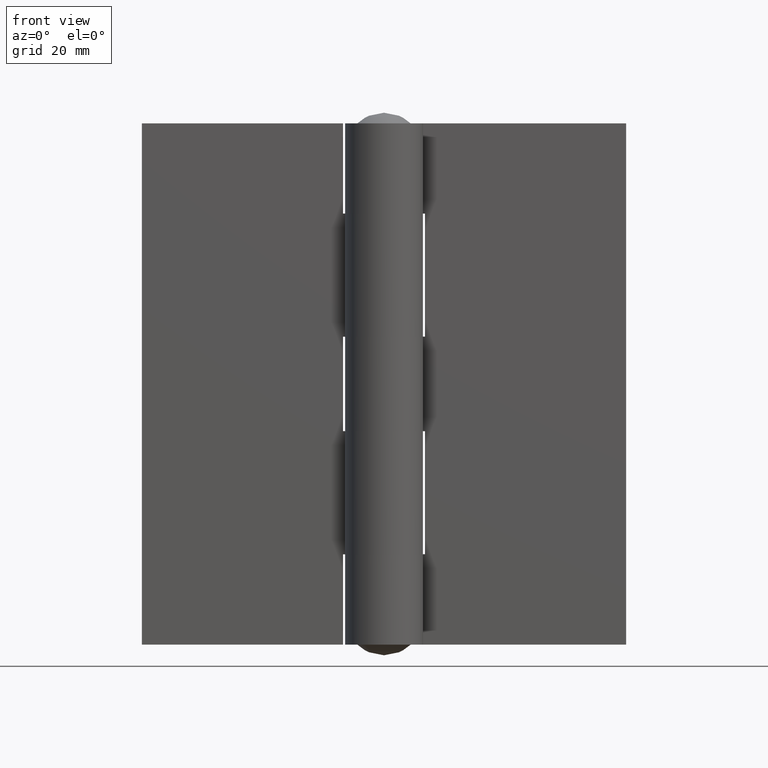
[diagram: clean part render]
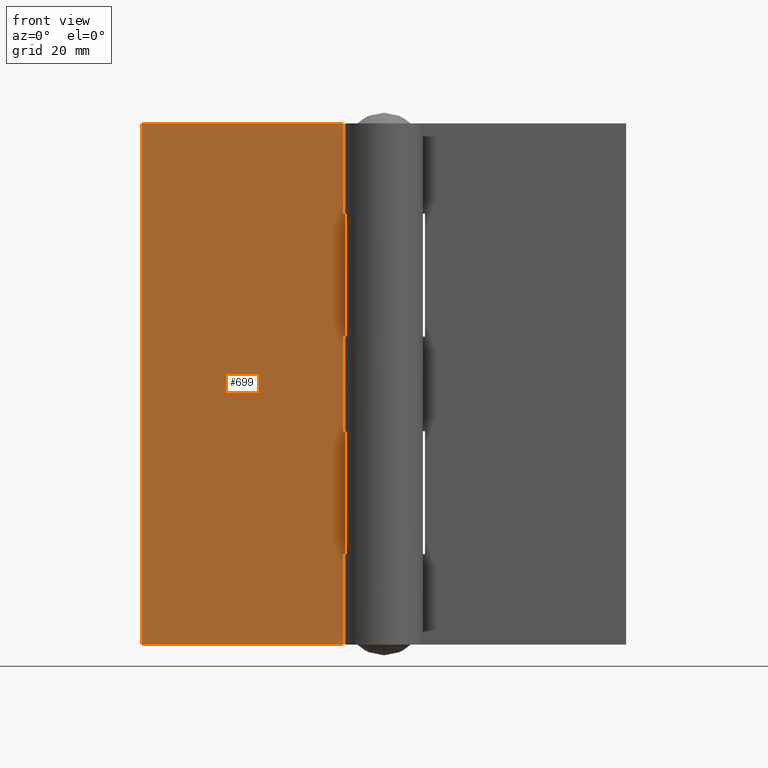
[diagram: same view with one face highlighted and labeled with its STEP entity id]
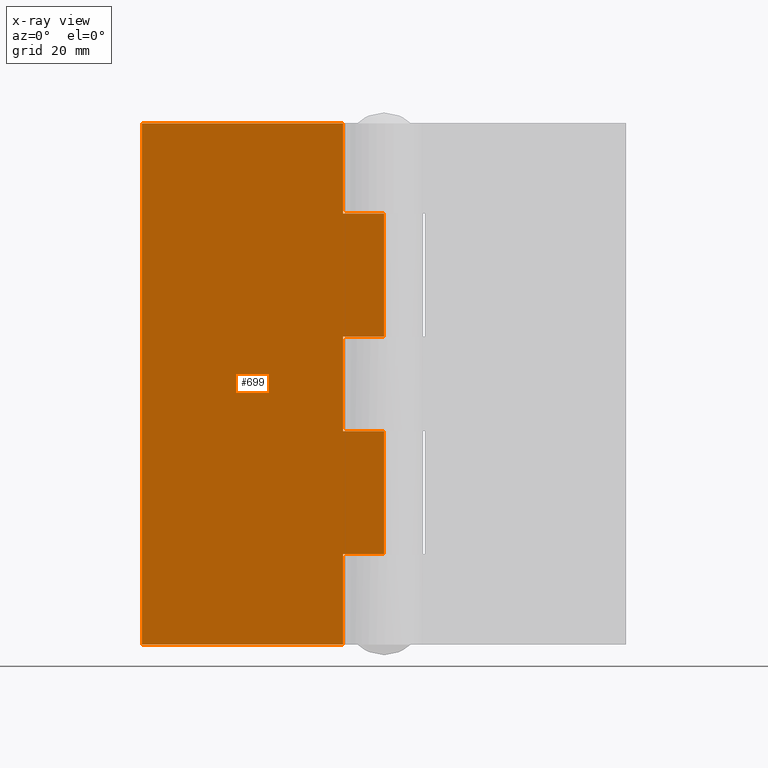
[diagram: x-ray of the same camera — body ghosted, the highlighted face saturated]
A machine part, front view. The second image highlights one B-rep face of the part: STEP entity #699.
The next image is the same camera in x-ray: the body ghosted, the highlighted face saturated — about 0% of this face is hidden behind the body in this view.
In plain terms, the highlighted face is a freeform B-spline surface patch.
Its self-contained STEP definition (entity closure, byte-faithful):
#49=CARTESIAN_POINT('',(-10.0,5.500000000000000,52.0));
#50=VERTEX_POINT('',#49);
#51=CARTESIAN_POINT('',(0.0,5.500000000000000,52.0));
#52=VERTEX_POINT('',#51);
#53=CARTESIAN_POINT('',(-10.0,5.500000000000000,52.0));
#54=CARTESIAN_POINT('',(0.0,5.500000000000000,52.0));
#55=QUASI_UNIFORM_CURVE('',1,(#53,#54),.UNSPECIFIED.,.F.,.U.);
#56=EDGE_CURVE('',#50,#52,#55,.T.);
#127=CARTESIAN_POINT('',(0.0,5.500000000000000,75.0));
#128=VERTEX_POINT('',#127);
#129=CARTESIAN_POINT('',(-10.0,5.500000000000000,75.0));
#130=VERTEX_POINT('',#129);
#131=CARTESIAN_POINT('',(0.0,5.500000000000000,75.0));
#132=CARTESIAN_POINT('',(-10.0,5.500000000000000,75.0));
#133=QUASI_UNIFORM_CURVE('',1,(#131,#132),.UNSPECIFIED.,.F.,.U.);
#134=EDGE_CURVE('',#128,#130,#133,.T.);
#205=CARTESIAN_POINT('',(-10.0,5.500000000000000,75.0));
#206=CARTESIAN_POINT('',(-10.0,5.500000000000000,52.0));
#207=QUASI_UNIFORM_CURVE('',1,(#205,#206),.UNSPECIFIED.,.F.,.U.);
#208=EDGE_CURVE('',#130,#50,#207,.T.);
#225=CARTESIAN_POINT('',(-10.0,5.500000000000000,22.0));
#226=VERTEX_POINT('',#225);
#227=CARTESIAN_POINT('',(-10.0,5.500000000000000,0.0));
#228=VERTEX_POINT('',#227);
#229=CARTESIAN_POINT('',(-10.0,5.500000000000000,22.0));
#230=CARTESIAN_POINT('',(-10.0,5.500000000000000,0.0));
#231=QUASI_UNIFORM_CURVE('',1,(#229,#230),.UNSPECIFIED.,.F.,.U.);
#232=EDGE_CURVE('',#226,#228,#231,.T.);
#261=CARTESIAN_POINT('',(0.0,5.500000000000000,22.0));
#262=VERTEX_POINT('',#261);
#263=CARTESIAN_POINT('',(0.0,5.500000000000000,22.0));
#264=CARTESIAN_POINT('',(-10.0,5.500000000000000,22.0));
#265=QUASI_UNIFORM_CURVE('',1,(#263,#264),.UNSPECIFIED.,.F.,.U.);
#266=EDGE_CURVE('',#262,#226,#265,.T.);
#331=CARTESIAN_POINT('',(-10.0,5.500000000000000,127.0));
#332=VERTEX_POINT('',#331);
#333=CARTESIAN_POINT('',(-10.0,5.500000000000000,105.0));
#334=VERTEX_POINT('',#333);
#335=CARTESIAN_POINT('',(-10.0,5.500000000000000,127.0));
#336=CARTESIAN_POINT('',(-10.0,5.500000000000000,105.0));
#337=QUASI_UNIFORM_CURVE('',1,(#335,#336),.UNSPECIFIED.,.F.,.U.);
#338=EDGE_CURVE('',#332,#334,#337,.T.);
#367=CARTESIAN_POINT('',(0.0,5.500000000000000,105.0));
#368=VERTEX_POINT('',#367);
#369=CARTESIAN_POINT('',(-10.0,5.500000000000000,105.0));
#370=CARTESIAN_POINT('',(0.0,5.500000000000000,105.0));
#371=QUASI_UNIFORM_CURVE('',1,(#369,#370),.UNSPECIFIED.,.F.,.U.);
#372=EDGE_CURVE('',#334,#368,#371,.T.);
#439=CARTESIAN_POINT('',(-59.0,5.500000000000000,0.0));
#440=VERTEX_POINT('',#439);
#446=CARTESIAN_POINT('',(-59.0,5.500000000000000,127.0));
#447=VERTEX_POINT('',#446);
#448=CARTESIAN_POINT('',(-59.0,5.500000000000000,127.0));
#449=CARTESIAN_POINT('',(-59.0,5.500000000000000,0.0));
#450=QUASI_UNIFORM_CURVE('',1,(#448,#449),.UNSPECIFIED.,.F.,.U.);
#451=EDGE_CURVE('',#447,#440,#450,.T.);
#480=CARTESIAN_POINT('',(-59.0,5.500000000000000,127.0));
#481=CARTESIAN_POINT('',(-10.0,5.500000000000000,127.0));
#482=QUASI_UNIFORM_CURVE('',1,(#480,#481),.UNSPECIFIED.,.F.,.U.);
#483=EDGE_CURVE('',#447,#332,#482,.T.);
#499=CARTESIAN_POINT('',(-59.0,5.500000000000000,0.0));
#500=CARTESIAN_POINT('',(-10.0,5.500000000000000,0.0));
#501=QUASI_UNIFORM_CURVE('',1,(#499,#500),.UNSPECIFIED.,.F.,.U.);
#502=EDGE_CURVE('',#440,#228,#501,.T.);
#637=CARTESIAN_POINT('',(0.0,5.500000000000000,52.0));
#638=CARTESIAN_POINT('',(0.0,5.500000000000000,22.0));
#639=QUASI_UNIFORM_CURVE('',1,(#637,#638),.UNSPECIFIED.,.F.,.U.);
#640=EDGE_CURVE('',#52,#262,#639,.T.);
#672=CARTESIAN_POINT('',(0.0,5.500000000000000,105.0));
#673=CARTESIAN_POINT('',(0.0,5.500000000000000,75.0));
#674=QUASI_UNIFORM_CURVE('',1,(#672,#673),.UNSPECIFIED.,.F.,.U.);
#675=EDGE_CURVE('',#368,#128,#674,.T.);
#680=CARTESIAN_POINT('',(-61.947049885646550,5.500000000000000,-6.343649753849362));
#681=CARTESIAN_POINT('',(-61.947049885646550,5.500000000000000,133.343653160254800));
#682=CARTESIAN_POINT('',(2.947051468149863,5.500000000000000,-6.343649753849362));
#683=CARTESIAN_POINT('',(2.947051468149863,5.500000000000000,133.343653160254800));
#684=B_SPLINE_SURFACE_WITH_KNOTS('',1,1,((#680,#682),(#681,#683)),.UNSPECIFIED.,.F.,.F.,.U.,(2,2),(2,2),(0.0,139.687302914104210),(0.0,64.894101353796415),.UNSPECIFIED.);
#685=ORIENTED_EDGE('',*,*,#134,.F.);
#686=ORIENTED_EDGE('',*,*,#675,.F.);
#687=ORIENTED_EDGE('',*,*,#372,.F.);
#688=ORIENTED_EDGE('',*,*,#338,.F.);
#689=ORIENTED_EDGE('',*,*,#483,.F.);
#690=ORIENTED_EDGE('',*,*,#451,.T.);
#691=ORIENTED_EDGE('',*,*,#502,.T.);
#692=ORIENTED_EDGE('',*,*,#232,.F.);
#693=ORIENTED_EDGE('',*,*,#266,.F.);
#694=ORIENTED_EDGE('',*,*,#640,.F.);
#695=ORIENTED_EDGE('',*,*,#56,.F.);
#696=ORIENTED_EDGE('',*,*,#208,.F.);
#697=EDGE_LOOP('',(#685,#686,#687,#688,#689,#690,#691,#692,#693,#694,#695,#696));
#698=FACE_OUTER_BOUND('',#697,.T.);
#699=ADVANCED_FACE('',(#698),#684,.F.);